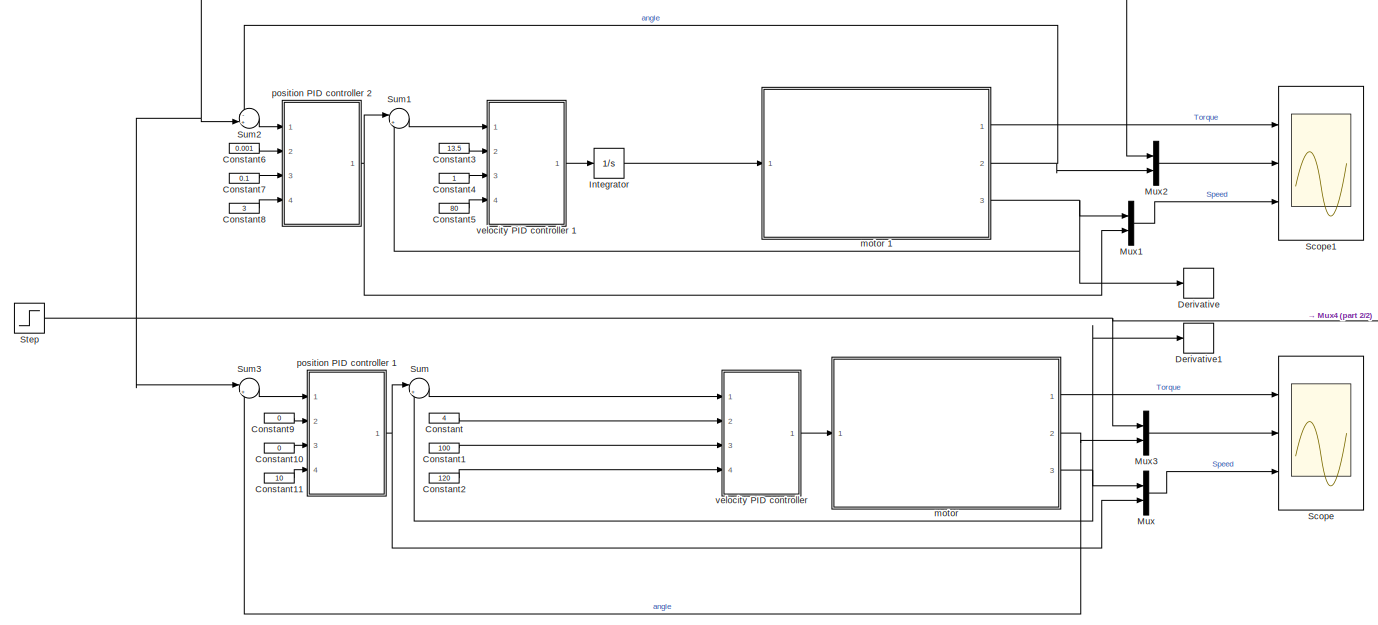
[diagram: root canvas - part 1/2, most of the canvas]
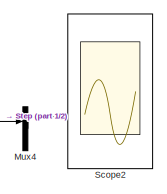
[diagram: root canvas - part 2/2, middle right region]
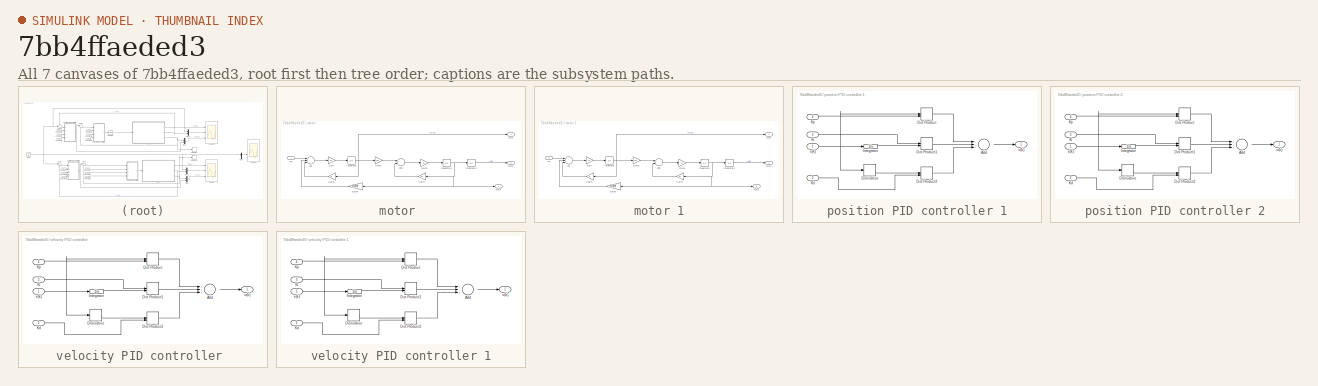
[diagram: thumbnail index - all 7 canvases of the model, root first then tree order]
MODEL slx_7bb4ffaeded3
KIND model
CONFIG AbsTol = auto
CONFIG FixedStep = 0.005
CONFIG MaxStep = auto
CONFIG MinStep = auto
CONFIG RelTol = 1e-3
CONFIG SampleTimeConstraint = Unconstrained
CONFIG Solver = FixedStepAuto
CONFIG SolverMode = Auto
CONFIG SolverName = FixedStepAuto
CONFIG StartTime = 0
CONFIG StopTime = 10
BLOCK [Constant] Constant
  Value = 4
BLOCK [Constant] Constant1
  Value = 100
BLOCK [Constant] Constant10
  Value = 0
BLOCK [Constant] Constant11
  Value = 10
BLOCK [Constant] Constant2
  Value = 120
BLOCK [Constant] Constant3
  Value = 13.5
BLOCK [Constant] Constant4
BLOCK [Constant] Constant5
  Value = 80
BLOCK [Constant] Constant6
  Value = 0.001
BLOCK [Constant] Constant7
  Value = 0.1
BLOCK [Constant] Constant8
  Value = 3
BLOCK [Constant] Constant9
  Value = 0
BLOCK [Derivative] Derivative
BLOCK [Derivative] Derivative1
BLOCK [Integrator] Integrator
  Ports = [1, 1]
BLOCK [Mux] Mux
  DisplayOption = bar
  Inputs = 2
  Ports = [2, 1]
BLOCK [Mux] Mux1
  DisplayOption = bar
  Inputs = 2
  Ports = [2, 1]
BLOCK [Mux] Mux2
  DisplayOption = bar
  Inputs = 2
  Ports = [2, 1]
BLOCK [Mux] Mux3
  DisplayOption = bar
  Inputs = 2
  Ports = [2, 1]
BLOCK [Mux] Mux4
  DisplayOption = bar
  Inputs = 2
  Ports = [2, 1]
BLOCK [Scope] Scope
  NumInputPorts = 3
  Ports = [3]
  ScopeSpecificationString = Simulink.scopes.TimeScopeBlockCfg('CurrentConfiguration', extmgr.ConfigurationSet(extmgr.Configuration('Core','General UI',true),extmgr.Configuration('Core','Source UI',true),extmgr.Configuration('Sources','WiredSimulink',true),extmgr.Configuration('Visuals','Time Domain',true,'SerializedDisplays',{struct('MinYLimReal','-10624.06255','MaxYLimReal','61055.05271','YLabelReal','','MinYLimMag','   0.0...<+2716ch>
BLOCK [Scope] Scope1
  NumInputPorts = 3
  Ports = [3]
  ScopeSpecificationString = Simulink.scopes.TimeScopeBlockCfg('CurrentConfiguration', extmgr.ConfigurationSet(extmgr.Configuration('Core','General UI',true),extmgr.Configuration('Core','Source UI',true),extmgr.Configuration('Sources','WiredSimulink',true,'DataLoggingVariableName','ScopeData1'),extmgr.Configuration('Visuals','Time Domain',true,'SerializedDisplays',{struct('MinYLimReal','-5323.28133','MaxYLimReal','32715.07423...<+2749ch>
BLOCK [Scope] Scope2
  NumInputPorts = 2
  Ports = [2]
  ScopeSpecificationString = Simulink.scopes.TimeScopeBlockCfg('CurrentConfiguration', extmgr.ConfigurationSet(extmgr.Configuration('Core','General UI',true),extmgr.Configuration('Core','Source UI',true),extmgr.Configuration('Sources','WiredSimulink',true,'DataLoggingVariableName','ScopeData1'),extmgr.Configuration('Visuals','Time Domain',true,'SerializedDisplays',{struct('MinYLimReal','-1.00000','MaxYLimReal','1.00000','YLab...<+2057ch>
BLOCK [Step] Step
  After = 1500
  SampleTime = 0.005
  Time = 3
BLOCK [Sum] Sum
  IconShape = round
  InputSameDT = off
  Inputs = |+-
  OutDataTypeStr = Inherit: Inherit via internal rule
  Ports = [2, 1]
  SaturateOnIntegerOverflow = off
BLOCK [Sum] Sum1
  IconShape = round
  InputSameDT = off
  Inputs = |+-
  OutDataTypeStr = Inherit: Inherit via internal rule
  Ports = [2, 1]
  SaturateOnIntegerOverflow = off
BLOCK [Sum] Sum2
  IconShape = round
  InputSameDT = off
  Inputs = -+|
  OutDataTypeStr = Inherit: Inherit via internal rule
  Ports = [2, 1]
  SaturateOnIntegerOverflow = off
BLOCK [Sum] Sum3
  IconShape = round
  InputSameDT = off
  Inputs = |+-
  OutDataTypeStr = Inherit: Inherit via internal rule
  Ports = [2, 1]
  SaturateOnIntegerOverflow = off
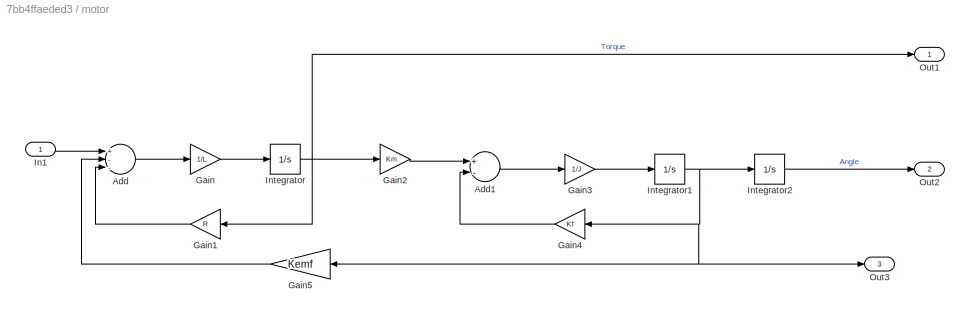
BLOCK [SubSystem] motor 
  Ports = [1, 3]
  RequestExecContextInheritance = off
  Variant = off
BLOCK [Sum] motor /Add
  InputSameDT = off
  Inputs = +--
  OutDataTypeStr = Inherit: Inherit via internal rule
  Ports = [3, 1]
  SaturateOnIntegerOverflow = off
BLOCK [Sum] motor /Add1
  InputSameDT = off
  Inputs = +-
  OutDataTypeStr = Inherit: Inherit via internal rule
  Ports = [2, 1]
  SaturateOnIntegerOverflow = off
BLOCK [Gain] motor /Gain
  Gain = 1/L
  OutDataTypeStr = Inherit: Inherit via internal rule
  ParamDataTypeStr = Inherit: Inherit via internal rule
  SaturateOnIntegerOverflow = off
BLOCK [Gain] motor /Gain1
  Gain = R
  OutDataTypeStr = Inherit: Inherit via internal rule
  ParamDataTypeStr = Inherit: Inherit via internal rule
  SaturateOnIntegerOverflow = off
BLOCK [Gain] motor /Gain2
  Gain = Km
  OutDataTypeStr = Inherit: Inherit via internal rule
  ParamDataTypeStr = Inherit: Inherit via internal rule
  SaturateOnIntegerOverflow = off
BLOCK [Gain] motor /Gain3
  Gain = 1/J
  OutDataTypeStr = Inherit: Inherit via internal rule
  ParamDataTypeStr = Inherit: Inherit via internal rule
  SaturateOnIntegerOverflow = off
BLOCK [Gain] motor /Gain4
  Gain = Kf
  OutDataTypeStr = Inherit: Inherit via internal rule
  ParamDataTypeStr = Inherit: Inherit via internal rule
  SaturateOnIntegerOverflow = off
BLOCK [Gain] motor /Gain5
  Gain = Kemf
  OutDataTypeStr = Inherit: Inherit via internal rule
  ParamDataTypeStr = Inherit: Inherit via internal rule
  SaturateOnIntegerOverflow = off
BLOCK [Inport] motor /In1
  IconDisplay = Port number
BLOCK [Integrator] motor /Integrator
  Ports = [1, 1]
BLOCK [Integrator] motor /Integrator1
  Ports = [1, 1]
BLOCK [Integrator] motor /Integrator2
  Ports = [1, 1]
BLOCK [Outport] motor /Out1
  IconDisplay = Port number
BLOCK [Outport] motor /Out2
  IconDisplay = Port number
  Port = 2
BLOCK [Outport] motor /Out3
  IconDisplay = Port number
  Port = 3
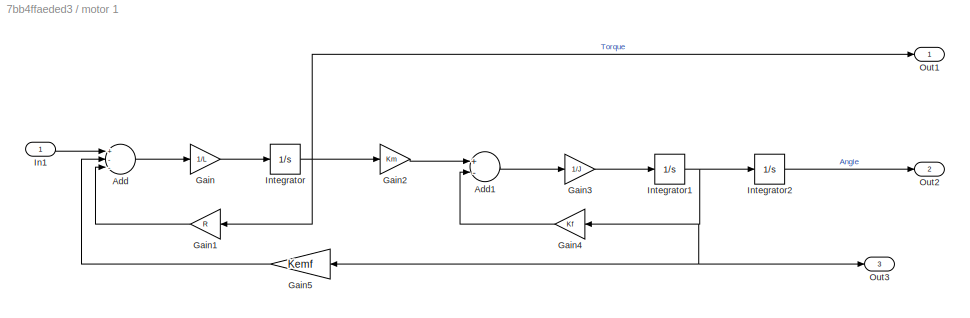
BLOCK [SubSystem] motor 1
  Ports = [1, 3]
  RequestExecContextInheritance = off
  Variant = off
BLOCK [Sum] motor 1/Add
  InputSameDT = off
  Inputs = +--
  OutDataTypeStr = Inherit: Inherit via internal rule
  Ports = [3, 1]
  SaturateOnIntegerOverflow = off
BLOCK [Sum] motor 1/Add1
  InputSameDT = off
  Inputs = +-
  OutDataTypeStr = Inherit: Inherit via internal rule
  Ports = [2, 1]
  SaturateOnIntegerOverflow = off
BLOCK [Gain] motor 1/Gain
  Gain = 1/L
  OutDataTypeStr = Inherit: Inherit via internal rule
  ParamDataTypeStr = Inherit: Inherit via internal rule
  SaturateOnIntegerOverflow = off
BLOCK [Gain] motor 1/Gain1
  Gain = R
  OutDataTypeStr = Inherit: Inherit via internal rule
  ParamDataTypeStr = Inherit: Inherit via internal rule
  SaturateOnIntegerOverflow = off
BLOCK [Gain] motor 1/Gain2
  Gain = Km
  OutDataTypeStr = Inherit: Inherit via internal rule
  ParamDataTypeStr = Inherit: Inherit via internal rule
  SaturateOnIntegerOverflow = off
BLOCK [Gain] motor 1/Gain3
  Gain = 1/J
  OutDataTypeStr = Inherit: Inherit via internal rule
  ParamDataTypeStr = Inherit: Inherit via internal rule
  SaturateOnIntegerOverflow = off
BLOCK [Gain] motor 1/Gain4
  Gain = Kf
  OutDataTypeStr = Inherit: Inherit via internal rule
  ParamDataTypeStr = Inherit: Inherit via internal rule
  SaturateOnIntegerOverflow = off
BLOCK [Gain] motor 1/Gain5
  Gain = Kemf
  OutDataTypeStr = Inherit: Inherit via internal rule
  ParamDataTypeStr = Inherit: Inherit via internal rule
  SaturateOnIntegerOverflow = off
BLOCK [Inport] motor 1/In1
  IconDisplay = Port number
BLOCK [Integrator] motor 1/Integrator
  Ports = [1, 1]
BLOCK [Integrator] motor 1/Integrator1
  Ports = [1, 1]
BLOCK [Integrator] motor 1/Integrator2
  Ports = [1, 1]
BLOCK [Outport] motor 1/Out1
  IconDisplay = Port number
BLOCK [Outport] motor 1/Out2
  IconDisplay = Port number
  Port = 2
BLOCK [Outport] motor 1/Out3
  IconDisplay = Port number
  Port = 3
BLOCK [SubSystem] position PID controller 1
  Ports = [4, 1]
  RequestExecContextInheritance = off
  Variant = off
BLOCK [Sum] position PID controller 1/Add
  InputSameDT = off
  Inputs = +++
  OutDataTypeStr = Inherit: Inherit via internal rule
  Ports = [3, 1]
  SaturateOnIntegerOverflow = off
BLOCK [Derivative] position PID controller 1/Derivative
BLOCK [DotProduct] position PID controller 1/Dot Product
  OutDataTypeStr = Inherit: Inherit via internal rule
BLOCK [DotProduct] position PID controller 1/Dot Product1
  OutDataTypeStr = Inherit: Inherit via internal rule
BLOCK [DotProduct] position PID controller 1/Dot Product2
  OutDataTypeStr = Inherit: Inherit via internal rule
BLOCK [Integrator] position PID controller 1/Integrator
  Ports = [1, 1]
BLOCK [Inport] position PID controller 1/Kd 
  IconDisplay = Port number
  Port = 2
BLOCK [Inport] position PID controller 1/Ki 
  IconDisplay = Port number
  Port = 3
BLOCK [Inport] position PID controller 1/Kp 
  IconDisplay = Port number
  Port = 4
BLOCK [Inport] position PID controller 1/e(k)
  IconDisplay = Port number
BLOCK [Outport] position PID controller 1/u(k)
  IconDisplay = Port number
BLOCK [SubSystem] position PID controller 2
  Ports = [4, 1]
  RequestExecContextInheritance = off
  Variant = off
BLOCK [Sum] position PID controller 2/Add
  InputSameDT = off
  Inputs = +++
  OutDataTypeStr = Inherit: Inherit via internal rule
  Ports = [3, 1]
  SaturateOnIntegerOverflow = off
BLOCK [Derivative] position PID controller 2/Derivative
BLOCK [DotProduct] position PID controller 2/Dot Product
  OutDataTypeStr = Inherit: Inherit via internal rule
BLOCK [DotProduct] position PID controller 2/Dot Product1
  OutDataTypeStr = Inherit: Inherit via internal rule
BLOCK [DotProduct] position PID controller 2/Dot Product2
  OutDataTypeStr = Inherit: Inherit via internal rule
BLOCK [Integrator] position PID controller 2/Integrator
  Ports = [1, 1]
BLOCK [Inport] position PID controller 2/Kd 
  IconDisplay = Port number
  Port = 2
BLOCK [Inport] position PID controller 2/Ki 
  IconDisplay = Port number
  Port = 3
BLOCK [Inport] position PID controller 2/Kp 
  IconDisplay = Port number
  Port = 4
BLOCK [Inport] position PID controller 2/e(k)
  IconDisplay = Port number
BLOCK [Outport] position PID controller 2/u(k)
  IconDisplay = Port number
BLOCK [SubSystem] velocity PID controller 
  Ports = [4, 1]
  RequestExecContextInheritance = off
  Variant = off
BLOCK [Sum] velocity PID controller /Add
  InputSameDT = off
  Inputs = +++
  OutDataTypeStr = Inherit: Inherit via internal rule
  Ports = [3, 1]
  SaturateOnIntegerOverflow = off
BLOCK [Derivative] velocity PID controller /Derivative
BLOCK [DotProduct] velocity PID controller /Dot Product
  OutDataTypeStr = Inherit: Inherit via internal rule
BLOCK [DotProduct] velocity PID controller /Dot Product1
  OutDataTypeStr = Inherit: Inherit via internal rule
BLOCK [DotProduct] velocity PID controller /Dot Product2
  OutDataTypeStr = Inherit: Inherit via internal rule
BLOCK [Integrator] velocity PID controller /Integrator
  Ports = [1, 1]
BLOCK [Inport] velocity PID controller /Kd 
  IconDisplay = Port number
  Port = 2
BLOCK [Inport] velocity PID controller /Ki 
  IconDisplay = Port number
  Port = 3
BLOCK [Inport] velocity PID controller /Kp 
  IconDisplay = Port number
  Port = 4
BLOCK [Inport] velocity PID controller /e(k)
  IconDisplay = Port number
BLOCK [Outport] velocity PID controller /u(k)
  IconDisplay = Port number
BLOCK [SubSystem] velocity PID controller 1
  Ports = [4, 1]
  RequestExecContextInheritance = off
  Variant = off
BLOCK [Sum] velocity PID controller 1/Add
  InputSameDT = off
  Inputs = +++
  OutDataTypeStr = Inherit: Inherit via internal rule
  Ports = [3, 1]
  SaturateOnIntegerOverflow = off
BLOCK [Derivative] velocity PID controller 1/Derivative
BLOCK [DotProduct] velocity PID controller 1/Dot Product
  OutDataTypeStr = Inherit: Inherit via internal rule
BLOCK [DotProduct] velocity PID controller 1/Dot Product1
  OutDataTypeStr = Inherit: Inherit via internal rule
BLOCK [DotProduct] velocity PID controller 1/Dot Product2
  OutDataTypeStr = Inherit: Inherit via internal rule
BLOCK [Integrator] velocity PID controller 1/Integrator
  Ports = [1, 1]
BLOCK [Inport] velocity PID controller 1/Kd 
  IconDisplay = Port number
  Port = 2
BLOCK [Inport] velocity PID controller 1/Ki 
  IconDisplay = Port number
  Port = 3
BLOCK [Inport] velocity PID controller 1/Kp 
  IconDisplay = Port number
  Port = 4
BLOCK [Inport] velocity PID controller 1/e(k)
  IconDisplay = Port number
BLOCK [Outport] velocity PID controller 1/u(k)
  IconDisplay = Port number
LINE Constant10:1 -> position PID controller 1:3
LINE Constant11:1 -> position PID controller 1:4
LINE Constant1:1 -> velocity PID controller :3
LINE Constant2:1 -> velocity PID controller :4
LINE Constant3:1 -> velocity PID controller 1:2
LINE Constant4:1 -> velocity PID controller 1:3
LINE Constant5:1 -> velocity PID controller 1:4
LINE Constant6:1 -> position PID controller 2:2
LINE Constant7:1 -> position PID controller 2:3
LINE Constant8:1 -> position PID controller 2:4
LINE Constant9:1 -> position PID controller 1:2
LINE Constant:1 -> velocity PID controller :2
LINE Integrator:1 -> motor 1:1
LINE Mux1:1 -> Scope1:3
LINE Mux2:1 -> Scope1:2
LINE Mux3:1 -> Scope:2
LINE Mux4:1 -> Scope2:2
LINE Mux:1 -> Scope:3
NET Step:1 -> Mux2:1, Mux3:1, Mux4:1, Sum2:2, Sum3:1
LINE Sum1:1 -> velocity PID controller 1:1
LINE Sum2:1 -> position PID controller 2:1
LINE Sum3:1 -> position PID controller 1:1
LINE Sum:1 -> velocity PID controller :1
LINE motor /Add1:1 -> motor /Gain3:1
LINE motor /Add:1 -> motor /Gain:1
LINE motor /Gain1:1 -> motor /Add:3
LINE motor /Gain2:1 -> motor /Add1:1
LINE motor /Gain3:1 -> motor /Integrator1:1
LINE motor /Gain4:1 -> motor /Add1:2
LINE motor /Gain5:1 -> motor /Add:2
LINE motor /Gain:1 -> motor /Integrator:1
LINE motor /In1:1 -> motor /Add:1
NET motor /Integrator1:1 -> motor /Gain4:1, motor /Gain5:1, motor /Integrator2:1, motor /Out3:1
LINE motor /Integrator2:1 -> motor /Out2:1
NET motor /Integrator:1 -> motor /Gain1:1, motor /Gain2:1, motor /Out1:1
LINE motor 1/Add1:1 -> motor 1/Gain3:1
LINE motor 1/Add:1 -> motor 1/Gain:1
LINE motor 1/Gain1:1 -> motor 1/Add:3
LINE motor 1/Gain2:1 -> motor 1/Add1:1
LINE motor 1/Gain3:1 -> motor 1/Integrator1:1
LINE motor 1/Gain4:1 -> motor 1/Add1:2
LINE motor 1/Gain5:1 -> motor 1/Add:2
LINE motor 1/Gain:1 -> motor 1/Integrator:1
LINE motor 1/In1:1 -> motor 1/Add:1
NET motor 1/Integrator1:1 -> motor 1/Gain4:1, motor 1/Gain5:1, motor 1/Integrator2:1, motor 1/Out3:1
LINE motor 1/Integrator2:1 -> motor 1/Out2:1
NET motor 1/Integrator:1 -> motor 1/Gain1:1, motor 1/Gain2:1, motor 1/Out1:1
LINE motor 1:1 -> Scope1:1
NET motor 1:2 -> Mux2:2, Sum2:1
NET motor 1:3 -> Derivative:1, Mux1:1, Sum1:2
LINE motor :1 -> Scope:1
NET motor :2 -> Mux3:2, Sum3:2
NET motor :3 -> Derivative1:1, Mux:1, Sum:2
LINE position PID controller 1/Add:1 -> position PID controller 1/u(k):1
LINE position PID controller 1/Derivative:1 -> position PID controller 1/Dot Product2:1
LINE position PID controller 1/Dot Product1:1 -> position PID controller 1/Add:2
LINE position PID controller 1/Dot Product2:1 -> position PID controller 1/Add:3
LINE position PID controller 1/Dot Product:1 -> position PID controller 1/Add:1
LINE position PID controller 1/Integrator:1 -> position PID controller 1/Dot Product1:2
LINE position PID controller 1/Kd :1 -> position PID controller 1/Dot Product2:2
LINE position PID controller 1/Ki :1 -> position PID controller 1/Dot Product1:1
LINE position PID controller 1/Kp :1 -> position PID controller 1/Dot Product:2
NET position PID controller 1/e(k):1 -> position PID controller 1/Derivative:1, position PID controller 1/Dot Product:1, position PID controller 1/Integrator:1
NET position PID controller 1:1 -> Mux:2, Sum:1
LINE position PID controller 2/Add:1 -> position PID controller 2/u(k):1
LINE position PID controller 2/Derivative:1 -> position PID controller 2/Dot Product2:1
LINE position PID controller 2/Dot Product1:1 -> position PID controller 2/Add:2
LINE position PID controller 2/Dot Product2:1 -> position PID controller 2/Add:3
LINE position PID controller 2/Dot Product:1 -> position PID controller 2/Add:1
LINE position PID controller 2/Integrator:1 -> position PID controller 2/Dot Product1:2
LINE position PID controller 2/Kd :1 -> position PID controller 2/Dot Product2:2
LINE position PID controller 2/Ki :1 -> position PID controller 2/Dot Product1:1
LINE position PID controller 2/Kp :1 -> position PID controller 2/Dot Product:2
NET position PID controller 2/e(k):1 -> position PID controller 2/Derivative:1, position PID controller 2/Dot Product:1, position PID controller 2/Integrator:1
NET position PID controller 2:1 -> Mux1:2, Sum1:1
LINE velocity PID controller /Add:1 -> velocity PID controller /u(k):1
LINE velocity PID controller /Derivative:1 -> velocity PID controller /Dot Product2:1
LINE velocity PID controller /Dot Product1:1 -> velocity PID controller /Add:2
LINE velocity PID controller /Dot Product2:1 -> velocity PID controller /Add:3
LINE velocity PID controller /Dot Product:1 -> velocity PID controller /Add:1
LINE velocity PID controller /Integrator:1 -> velocity PID controller /Dot Product1:2
LINE velocity PID controller /Kd :1 -> velocity PID controller /Dot Product2:2
LINE velocity PID controller /Ki :1 -> velocity PID controller /Dot Product1:1
LINE velocity PID controller /Kp :1 -> velocity PID controller /Dot Product:2
NET velocity PID controller /e(k):1 -> velocity PID controller /Derivative:1, velocity PID controller /Dot Product:1, velocity PID controller /Integrator:1
LINE velocity PID controller 1/Add:1 -> velocity PID controller 1/u(k):1
LINE velocity PID controller 1/Derivative:1 -> velocity PID controller 1/Dot Product2:1
LINE velocity PID controller 1/Dot Product1:1 -> velocity PID controller 1/Add:2
LINE velocity PID controller 1/Dot Product2:1 -> velocity PID controller 1/Add:3
LINE velocity PID controller 1/Dot Product:1 -> velocity PID controller 1/Add:1
LINE velocity PID controller 1/Integrator:1 -> velocity PID controller 1/Dot Product1:2
LINE velocity PID controller 1/Kd :1 -> velocity PID controller 1/Dot Product2:2
LINE velocity PID controller 1/Ki :1 -> velocity PID controller 1/Dot Product1:1
LINE velocity PID controller 1/Kp :1 -> velocity PID controller 1/Dot Product:2
NET velocity PID controller 1/e(k):1 -> velocity PID controller 1/Derivative:1, velocity PID controller 1/Dot Product:1, velocity PID controller 1/Integrator:1
LINE velocity PID controller 1:1 -> Integrator:1
LINE velocity PID controller :1 -> motor :1
note: NET lines group one-source signal fan-out (src -> all destinations, sorted); 1:1 wires keep LINE
